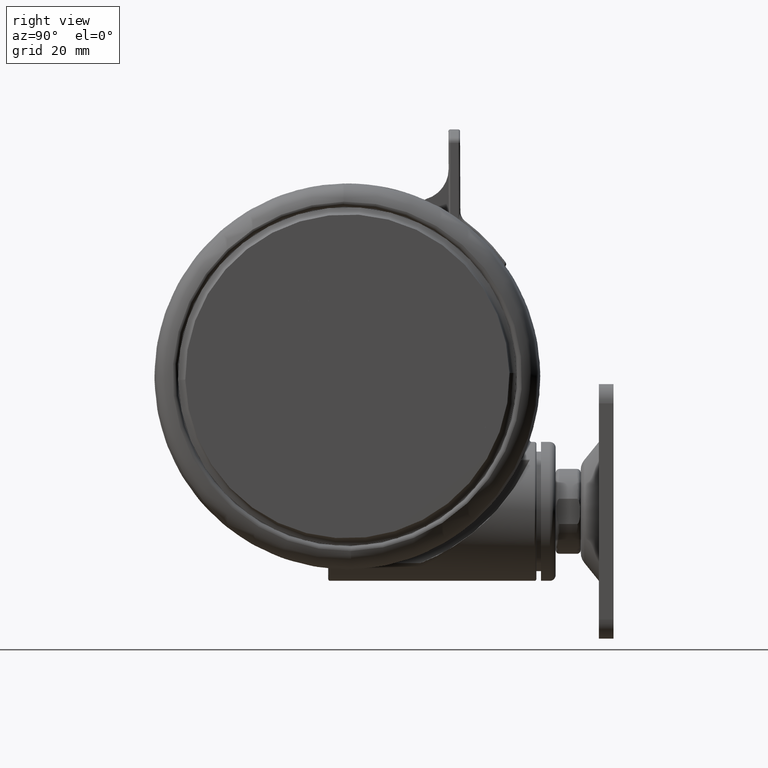
[diagram: clean part render]
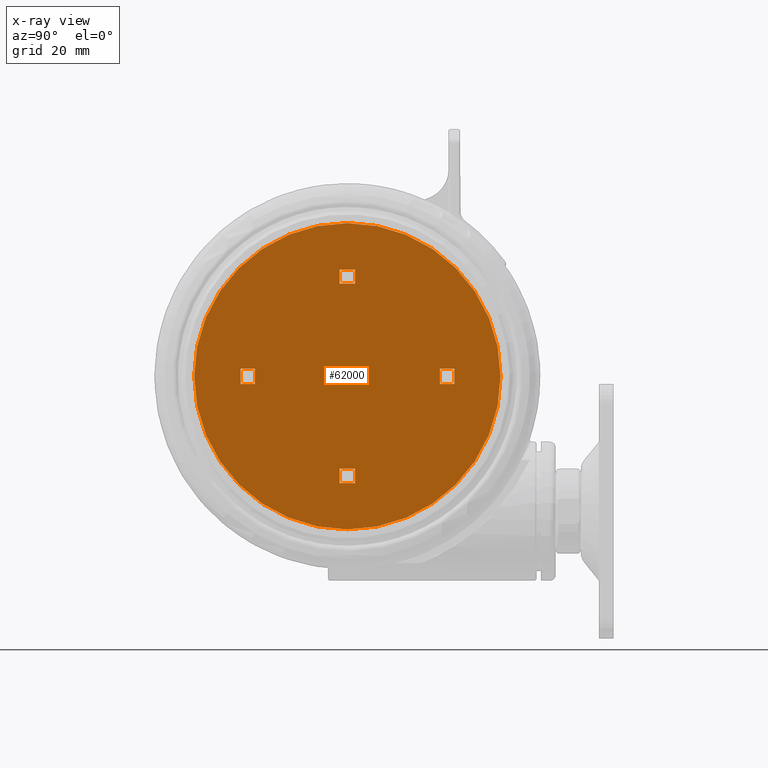
[diagram: x-ray — body ghosted, one internal face saturated and labeled with its STEP entity id]
A machine part, right view, then the same camera in x-ray: the body is ghosted and one INTERNAL B-rep face — a face not visible from any outside direction — is saturated and labeled: STEP entity #62000.
In plain terms, the highlighted planar face has unit normal (-1, 0, 0).
Its self-contained STEP definition (entity closure, byte-faithful):
#186 = CARTESIAN_POINT ( 'NONE',  ( 0.04052262348474322500, 1.999594279875630300, -63.39999999999985600 ) ) ;
#212 = FACE_BOUND ( 'NONE', #39823, .T. ) ;
#683 = VECTOR ( 'NONE', #39269, 1000.000000000000100 ) ;
#879 = DIRECTION ( 'NONE',  ( -0.02026128721468460300, -0.9997947190500677800, -0.0000000000000000000 ) ) ;
#1209 = DIRECTION ( 'NONE',  ( -0.9997947190500675600, 0.02026128721469507000, 0.0000000000000000000 ) ) ;
#2436 = CARTESIAN_POINT ( 'NONE',  ( -0.04052252537399518600, -1.999584596324641500, -63.39999999999985600 ) ) ;
#2487 = AXIS2_PLACEMENT_3D ( 'NONE', #32469, #51759, #13475 ) ;
#2854 = ORIENTED_EDGE ( 'NONE', *, *, #48930, .T. ) ;
#3699 = DIRECTION ( 'NONE',  ( 0.0000000000000000000, -0.0000000000000000000, 1.000000000000000000 ) ) ;
#3826 = CARTESIAN_POINT ( 'NONE',  ( 1.999589487155510400, -0.04051773265388143600, -63.39999999999985600 ) ) ;
#4294 = CARTESIAN_POINT ( 'NONE',  ( 27.65379119231288400, -2.560822252171405000, -63.39999999999985600 ) ) ;
#4486 = VERTEX_POINT ( 'NONE', #71521 ) ;
#6780 = PLANE ( 'NONE',  #2487 ) ;
#6843 = VECTOR ( 'NONE', #7271, 1000.000000000000100 ) ;
#7271 = DIRECTION ( 'NONE',  ( -0.02026128721468809000, -0.9997947190500676700, 1.807003620809174600E-016 ) ) ;
#7585 = CARTESIAN_POINT ( 'NONE',  ( 24.03559588068637600, 1.513323386723199900, -63.39999999999985600 ) ) ;
#7773 = CARTESIAN_POINT ( 'NONE',  ( -24.03559578257562600, -1.513313703172211000, -63.39999999999985600 ) ) ;
#9726 = LINE ( 'NONE', #36210, #20699 ) ;
#10080 = VECTOR ( 'NONE', #1209, 1000.000000000000100 ) ;
#10157 = VECTOR ( 'NONE', #48084, 1000.000000000000100 ) ;
#10952 = ORIENTED_EDGE ( 'NONE', *, *, #78531, .T. ) ;
#10954 = VERTEX_POINT ( 'NONE', #73640 ) ;
#11323 = ORIENTED_EDGE ( 'NONE', *, *, #66405, .F. ) ;
#11354 = DIRECTION ( 'NONE',  ( 0.02026128721468460300, 0.9997947190500677800, -0.0000000000000000000 ) ) ;
#12003 = AXIS2_PLACEMENT_3D ( 'NONE', #41961, #3699, #48412 ) ;
#12237 = EDGE_CURVE ( 'NONE', #35005, #58969, #25875, .T. ) ;
#12677 = ORIENTED_EDGE ( 'NONE', *, *, #27137, .F. ) ;
#13018 = DIRECTION ( 'NONE',  ( 0.02026128721468460300, 0.9997947190500677800, 0.0000000000000000000 ) ) ;
#13206 = VECTOR ( 'NONE', #879, 1000.000000000000100 ) ;
#13475 = DIRECTION ( 'NONE',  ( -0.02026128721468460300, -0.9997947190500677800, 0.0000000000000000000 ) ) ;
#13612 = LINE ( 'NONE', #51302, #45599 ) ;
#14047 = EDGE_CURVE ( 'NONE', #41639, #71212, #80681, .T. ) ;
#14163 = CARTESIAN_POINT ( 'NONE',  ( 4.905537434596318700E-008, 4.841775494424105400E-006, -63.39999999999985600 ) ) ;
#14597 = VERTEX_POINT ( 'NONE', #45885 ) ;
#15158 = FACE_BOUND ( 'NONE', #40891, .T. ) ;
#15508 = VERTEX_POINT ( 'NONE', #33583 ) ;
#15538 = CARTESIAN_POINT ( 'NONE',  ( 1.438351831308456700, -27.73483145034074900, -63.39999999999985600 ) ) ;
#17233 = DIRECTION ( 'NONE',  ( 0.9997947190500676700, -0.02026128721468809000, 0.0000000000000000000 ) ) ;
#19423 = CARTESIAN_POINT ( 'NONE',  ( -23.95455063371688500, 2.485865173028060800, -63.39999999999985600 ) ) ;
#19850 = VECTOR ( 'NONE', #26381, 1000.000000000000100 ) ;
#20008 = CARTESIAN_POINT ( 'NONE',  ( -1.513318495892246100, 24.03560067340649200, -63.39999999999985600 ) ) ;
#20064 = EDGE_CURVE ( 'NONE', #56180, #41639, #13612, .T. ) ;
#20592 = DIRECTION ( 'NONE',  ( -0.02026128721468459900, -0.9997947190500677800, 0.0000000000000000000 ) ) ;
#20699 = VECTOR ( 'NONE', #74629, 1000.000000000000100 ) ;
#20988 = VERTEX_POINT ( 'NONE', #80520 ) ;
#21534 = VERTEX_POINT ( 'NONE', #42001 ) ;
#21793 = LINE ( 'NONE', #79688, #70887 ) ;
#21922 = EDGE_LOOP ( 'NONE', ( #28222, #26186, #60719, #11323 ) ) ;
#22115 = CARTESIAN_POINT ( 'NONE',  ( 1.999589487155510000, -0.04051773265389605600, -63.39999999999985600 ) ) ;
#23360 = VECTOR ( 'NONE', #40975, 1000.000000000000100 ) ;
#25079 = LINE ( 'NONE', #52325, #10080 ) ;
#25366 = VECTOR ( 'NONE', #67918, 1000.000000000000100 ) ;
#25875 = LINE ( 'NONE', #58298, #19850 ) ;
#26186 = ORIENTED_EDGE ( 'NONE', *, *, #39252, .T. ) ;
#26381 = DIRECTION ( 'NONE',  ( -0.9997947190500677800, 0.02026128721468460300, 1.807003620809174600E-016 ) ) ;
#27137 = EDGE_CURVE ( 'NONE', #50425, #80181, #61233, .T. ) ;
#28116 = ORIENTED_EDGE ( 'NONE', *, *, #14047, .T. ) ;
#28222 = ORIENTED_EDGE ( 'NONE', *, *, #69168, .T. ) ;
#28669 = ORIENTED_EDGE ( 'NONE', *, *, #83043, .T. ) ;
#29232 = AXIS2_PLACEMENT_3D ( 'NONE', #14163, #58957, #20592 ) ;
#29417 = DIRECTION ( 'NONE',  ( 0.9997947190500675600, -0.02026128721469507000, -0.0000000000000000000 ) ) ;
#29490 = CARTESIAN_POINT ( 'NONE',  ( -1.513318495892246100, 24.03560067340649200, -63.39999999999985600 ) ) ;
#30512 = CARTESIAN_POINT ( 'NONE',  ( -2.485860282197441600, -23.95454584099676200, -63.39999999999985600 ) ) ;
#30530 = EDGE_CURVE ( 'NONE', #14597, #15508, #67330, .T. ) ;
#31367 = EDGE_CURVE ( 'NONE', #34539, #80181, #58163, .T. ) ;
#31837 = CIRCLE ( 'NONE', #12003, 39.70000000000000300 ) ;
#31987 = CARTESIAN_POINT ( 'NONE',  ( 23.95455073182763400, -2.485855489477072100, -63.39999999999985600 ) ) ;
#32183 = FACE_BOUND ( 'NONE', #32803, .T. ) ;
#32469 = CARTESIAN_POINT ( 'NONE',  ( -40.49168607247237600, 0.8205869739702208500, -63.39999999999985600 ) ) ;
#32613 = LINE ( 'NONE', #78456, #62713 ) ;
#32803 = EDGE_LOOP ( 'NONE', ( #60426, #28116, #35553, #65222 ) ) ;
#33531 = VECTOR ( 'NONE', #56976, 1000.000000000000100 ) ;
#33583 = CARTESIAN_POINT ( 'NONE',  ( -0.8043730533676043400, -39.69184550451220200, -63.39999999999984200 ) ) ;
#33849 = EDGE_CURVE ( 'NONE', #21534, #47819, #51674, .T. ) ;
#34539 = VERTEX_POINT ( 'NONE', #30512 ) ;
#35005 = VERTEX_POINT ( 'NONE', #80570 ) ;
#35093 = ORIENTED_EDGE ( 'NONE', *, *, #58547, .T. ) ;
#35553 = ORIENTED_EDGE ( 'NONE', *, *, #46998, .T. ) ;
#36187 = LINE ( 'NONE', #51999, #13206 ) ;
#36210 = CARTESIAN_POINT ( 'NONE',  ( 27.69431376674225500, -0.5612328140712691300, -63.39999999999985600 ) ) ;
#36344 = EDGE_CURVE ( 'NONE', #15508, #14597, #31837, .T. ) ;
#39252 = EDGE_CURVE ( 'NONE', #4486, #21534, #42332, .T. ) ;
#39269 = DIRECTION ( 'NONE',  ( -0.9997947190500676700, 0.02026128721468809000, -0.0000000000000000000 ) ) ;
#39802 = VERTEX_POINT ( 'NONE', #4294 ) ;
#39823 = EDGE_LOOP ( 'NONE', ( #10952, #28669, #45237, #12677 ) ) ;
#40016 = DIRECTION ( 'NONE',  ( -0.9997947190500677800, 0.02026128721468460300, 1.807003620809174600E-016 ) ) ;
#40286 = LINE ( 'NONE', #2436, #23360 ) ;
#40891 = EDGE_LOOP ( 'NONE', ( #73802, #35093, #2854, #62903 ) ) ;
#40975 = DIRECTION ( 'NONE',  ( 0.9997947190500677800, -0.02026128721468460300, 1.807003620809174600E-016 ) ) ;
#41058 = VECTOR ( 'NONE', #29417, 1000.000000000000100 ) ;
#41639 = VERTEX_POINT ( 'NONE', #59822 ) ;
#41961 = CARTESIAN_POINT ( 'NONE',  ( 4.905537434596318700E-008, 4.841775494424105400E-006, -63.39999999999985600 ) ) ;
#42001 = CARTESIAN_POINT ( 'NONE',  ( 2.485860380308025700, 23.95455552454775400, -63.39999999999985600 ) ) ;
#42332 = LINE ( 'NONE', #3826, #25366 ) ;
#43091 = EDGE_CURVE ( 'NONE', #35005, #39802, #9726, .T. ) ;
#44031 = CARTESIAN_POINT ( 'NONE',  ( -27.73483624306087600, -1.438346940477877900, -63.39999999999985600 ) ) ;
#44447 = VERTEX_POINT ( 'NONE', #7773 ) ;
#45237 = ORIENTED_EDGE ( 'NONE', *, *, #31367, .T. ) ;
#45542 = CARTESIAN_POINT ( 'NONE',  ( -1.999589389044761600, 0.04052741620487093600, -63.39999999999985600 ) ) ;
#45599 = VECTOR ( 'NONE', #13018, 1000.000000000000100 ) ;
#45885 = CARTESIAN_POINT ( 'NONE',  ( 0.8043731514783482000, 39.69185518806318700, -63.39999999999984200 ) ) ;
#46998 = EDGE_CURVE ( 'NONE', #71212, #44447, #36187, .T. ) ;
#47819 = VERTEX_POINT ( 'NONE', #29490 ) ;
#48084 = DIRECTION ( 'NONE',  ( 0.02026128721469507000, 0.9997947190500675600, 1.807003620809174600E-016 ) ) ;
#48412 = DIRECTION ( 'NONE',  ( -0.02026128721468459900, -0.9997947190500677800, 0.0000000000000000000 ) ) ;
#48690 = CARTESIAN_POINT ( 'NONE',  ( 1.513318594002830000, -24.03559098985550000, -63.39999999999985600 ) ) ;
#48791 = CARTESIAN_POINT ( 'NONE',  ( -39.93044841662561600, 28.51490069165710400, -63.39999999999985600 ) ) ;
#48930 = EDGE_CURVE ( 'NONE', #52012, #58969, #63443, .T. ) ;
#50425 = VERTEX_POINT ( 'NONE', #15538 ) ;
#51302 = CARTESIAN_POINT ( 'NONE',  ( -27.69431366863150500, 0.5612424976222579700, -63.39999999999985600 ) ) ;
#51632 = VECTOR ( 'NONE', #17233, 1000.000000000000100 ) ;
#51674 = LINE ( 'NONE', #20008, #683 ) ;
#51759 = DIRECTION ( 'NONE',  ( -0.0000000000000000000, 0.0000000000000000000, -1.000000000000000000 ) ) ;
#51999 = CARTESIAN_POINT ( 'NONE',  ( -24.03559578257562600, -1.513313703172211000, -63.39999999999985600 ) ) ;
#52012 = VERTEX_POINT ( 'NONE', #31987 ) ;
#52325 = CARTESIAN_POINT ( 'NONE',  ( -41.05292372831912900, -26.87372674371625800, -63.39999999999985600 ) ) ;
#55898 = LINE ( 'NONE', #45542, #6843 ) ;
#56180 = VERTEX_POINT ( 'NONE', #44031 ) ;
#56781 = ORIENTED_EDGE ( 'NONE', *, *, #36344, .T. ) ;
#56976 = DIRECTION ( 'NONE',  ( 0.9997947190500677800, -0.02026128721468460300, 1.807003620809174600E-016 ) ) ;
#58163 = LINE ( 'NONE', #48690, #41058 ) ;
#58298 = CARTESIAN_POINT ( 'NONE',  ( 0.04052262348474387800, 1.999594279875630300, -63.39999999999985600 ) ) ;
#58547 = EDGE_CURVE ( 'NONE', #39802, #52012, #32613, .T. ) ;
#58957 = DIRECTION ( 'NONE',  ( 0.0000000000000000000, -0.0000000000000000000, 1.000000000000000000 ) ) ;
#58969 = VERTEX_POINT ( 'NONE', #7585 ) ;
#59822 = CARTESIAN_POINT ( 'NONE',  ( -27.65379109420213800, 2.560831935722394100, -63.39999999999985600 ) ) ;
#60426 = ORIENTED_EDGE ( 'NONE', *, *, #20064, .T. ) ;
#60719 = ORIENTED_EDGE ( 'NONE', *, *, #33849, .T. ) ;
#61026 = EDGE_LOOP ( 'NONE', ( #56781, #70905 ) ) ;
#61233 = LINE ( 'NONE', #22115, #10157 ) ;
#62000 = ADVANCED_FACE ( 'NONE', ( #212, #15158, #64285, #32183, #81306 ), #6780, .F. ) ;
#62620 = EDGE_CURVE ( 'NONE', #56180, #44447, #40286, .T. ) ;
#62713 = VECTOR ( 'NONE', #40016, 1000.000000000000100 ) ;
#62903 = ORIENTED_EDGE ( 'NONE', *, *, #12237, .F. ) ;
#63443 = LINE ( 'NONE', #68716, #78429 ) ;
#64285 = FACE_BOUND ( 'NONE', #21922, .T. ) ;
#65222 = ORIENTED_EDGE ( 'NONE', *, *, #62620, .F. ) ;
#66405 = EDGE_CURVE ( 'NONE', #10954, #47819, #55898, .T. ) ;
#66673 = CARTESIAN_POINT ( 'NONE',  ( 1.513318594002830000, -24.03559098985550000, -63.39999999999985600 ) ) ;
#67330 = CIRCLE ( 'NONE', #29232, 39.70000000000000300 ) ;
#67918 = DIRECTION ( 'NONE',  ( -0.02026128721468809000, -0.9997947190500676700, 1.807003620809174600E-016 ) ) ;
#68710 = LINE ( 'NONE', #48791, #51632 ) ;
#68716 = CARTESIAN_POINT ( 'NONE',  ( 24.03559588068637600, 1.513323386723199900, -63.39999999999985600 ) ) ;
#69168 = EDGE_CURVE ( 'NONE', #10954, #4486, #68710, .T. ) ;
#70887 = VECTOR ( 'NONE', #73252, 1000.000000000000100 ) ;
#70905 = ORIENTED_EDGE ( 'NONE', *, *, #30530, .T. ) ;
#71212 = VERTEX_POINT ( 'NONE', #19423 ) ;
#71521 = CARTESIAN_POINT ( 'NONE',  ( 2.560827143002368800, 27.65379598503300300, -63.39999999999985600 ) ) ;
#73252 = DIRECTION ( 'NONE',  ( 0.02026128721469507000, 0.9997947190500675600, 1.807003620809174600E-016 ) ) ;
#73640 = CARTESIAN_POINT ( 'NONE',  ( -1.438351733197903000, 27.73484113389174200, -63.39999999999985600 ) ) ;
#73802 = ORIENTED_EDGE ( 'NONE', *, *, #43091, .T. ) ;
#74629 = DIRECTION ( 'NONE',  ( -0.02026128721468460300, -0.9997947190500677800, 0.0000000000000000000 ) ) ;
#78429 = VECTOR ( 'NONE', #11354, 1000.000000000000100 ) ;
#78456 = CARTESIAN_POINT ( 'NONE',  ( -0.04052252537399453300, -1.999584596324641500, -63.39999999999985600 ) ) ;
#78531 = EDGE_CURVE ( 'NONE', #50425, #20988, #25079, .T. ) ;
#79688 = CARTESIAN_POINT ( 'NONE',  ( -1.999589389044761100, 0.04052741620488425200, -63.39999999999985600 ) ) ;
#80181 = VERTEX_POINT ( 'NONE', #66673 ) ;
#80520 = CARTESIAN_POINT ( 'NONE',  ( -2.560827044891814900, -27.65378630148200800, -63.39999999999985600 ) ) ;
#80570 = CARTESIAN_POINT ( 'NONE',  ( 27.73483634117162600, 1.438356624028866800, -63.39999999999985600 ) ) ;
#80681 = LINE ( 'NONE', #186, #33531 ) ;
#81306 = FACE_OUTER_BOUND ( 'NONE', #61026, .T. ) ;
#83043 = EDGE_CURVE ( 'NONE', #20988, #34539, #21793, .T. ) ;